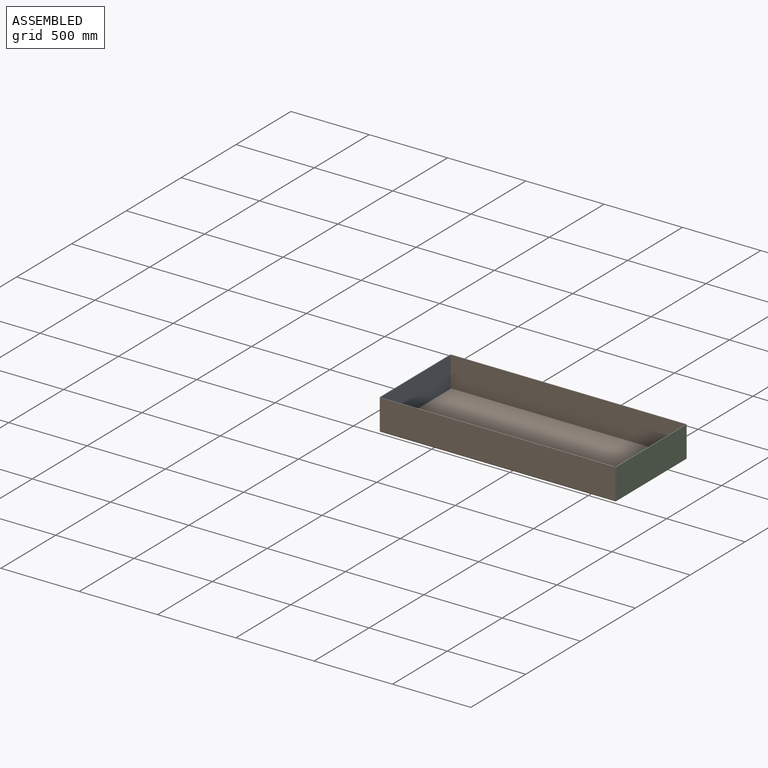
[diagram: assembled view]
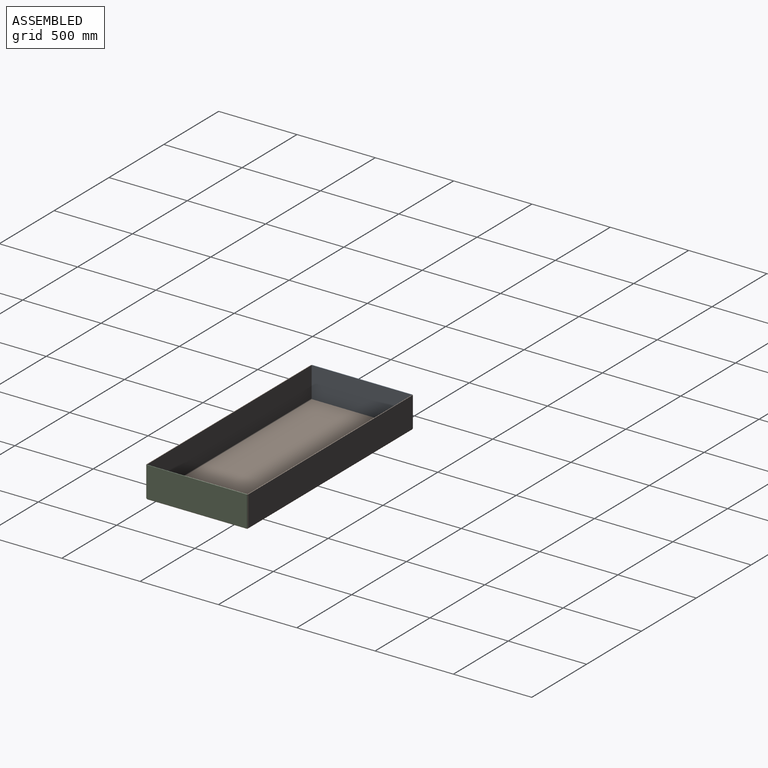
[diagram: assembled view, second angle]
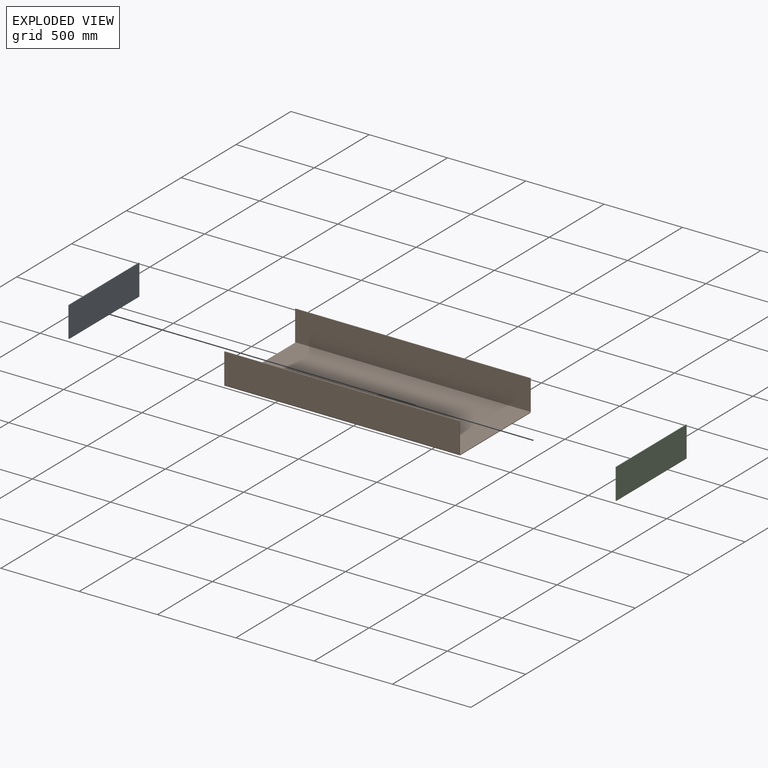
[diagram: exploded view]
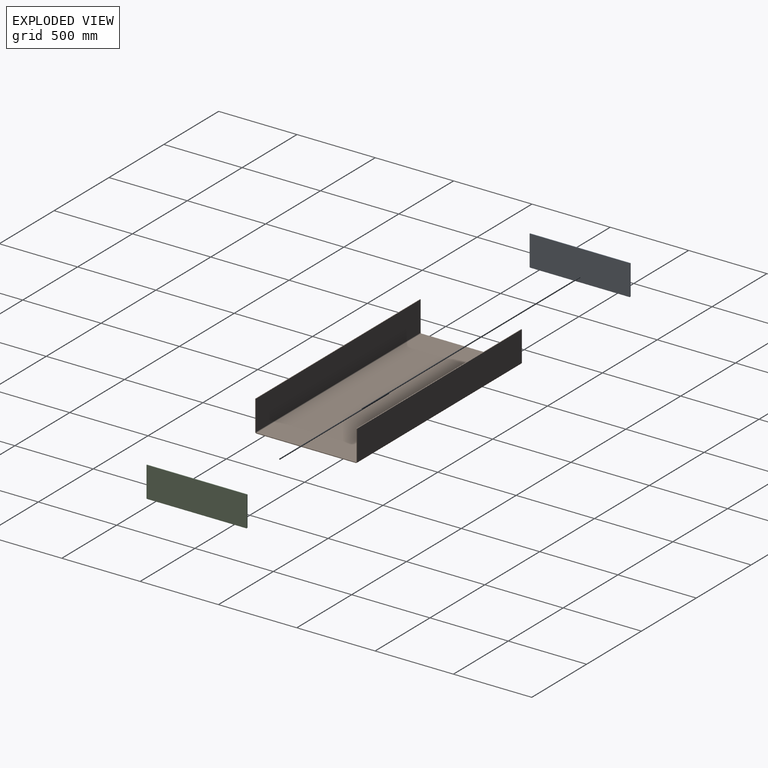
[diagram: exploded view, second angle]
ASSEMBLY  parts=3 mates=2
PART A: 8 faces, bbox 4x642x196 mm
  f0: plane 192x4mm, normal (0,1,0), area 768mm2, adj f1,f4,f5,f7
  f1: plane 642x4mm, normal (0,0,1), area 2568mm2, adj f0,f2,f4,f5
  f2: plane 192x4mm, normal (0,-1,0), area 768mm2, adj f1,f4,f5,f6
  f3: plane 634x4mm, normal (0,0,-1), area 2536mm2, adj f4,f5,f6,f7
  f4: plane 642x196mm, normal (1,0,0), area 125825.1mm2, adj f0,f1,f2,f3,f6,f7
  f5: plane 642x196mm, normal (-1,0,0), area 125825.1mm2, adj f0,f1,f2,f3,f6,f7
  f6: cylinder r=4mm len=4mm, axis (1,0,0), area 25.1mm2, adj f2,f3,f4,f5
  f7: cylinder r=4mm len=4mm, axis (-1,0,0), area 25.1mm2, adj f0,f3,f4,f5
PART B: 22 faces, bbox 1502x650x200 mm
  f0: plane 634x4mm, normal (1,0,0), area 2536mm2, adj f2,f3,f9,f19
  f1: plane 634x4mm, normal (-1,0,0), area 2536mm2, adj f2,f3,f10,f18
  f2: plane 1502x634mm, normal (0,0,-1), area 952268mm2, adj f0,f1,f11,f20
  f3: plane 1502x634mm, normal (0,0,1), area 952268mm2, adj f0,f1,f12,f21
  f4: plane 1502x4mm, normal (0,0,1), area 6008mm2, adj f5,f6,f7,f8
  f5: plane 192x4mm, normal (-1,0,0), area 768mm2, adj f4,f7,f8,f10
  f6: plane 192x4mm, normal (1,0,0), area 768mm2, adj f4,f7,f8,f9
  f7: plane 1502x192mm, normal (0,-1,0), area 288384mm2, adj f4,f5,f6,f11
  f8: plane 1502x192mm, normal (0,1,0), area 288384mm2, adj f4,f5,f6,f12
  f9: plane 8x8mm, normal (1,0,0), area 37.7mm2, adj f0,f6,f11,f12
  f10: plane 8x8mm, normal (-1,0,0), area 37.7mm2, adj f1,f5,f11,f12
  f11: cylinder r=8mm len=1502mm, axis (1,0,0), area 18874.7mm2, adj f2,f7,f9,f10
  f12: cylinder r=4mm len=1502mm, axis (1,0,0), area 9437.3mm2, adj f3,f8,f9,f10
  f13: plane 1502x4mm, normal (0,0,1), area 6008mm2, adj f14,f15,f16,f17
  f14: plane 192x4mm, normal (1,0,0), area 768mm2, adj f13,f16,f17,f19
  f15: plane 192x4mm, normal (-1,0,0), area 768mm2, adj f13,f16,f17,f18
  f16: plane 1502x192mm, normal (0,1,0), area 288384mm2, adj f13,f14,f15,f20
  f17: plane 1502x192mm, normal (0,-1,0), area 288384mm2, adj f13,f14,f15,f21
  f18: plane 8x8mm, normal (-1,0,0), area 37.7mm2, adj f1,f15,f20,f21
  f19: plane 8x8mm, normal (1,0,0), area 37.7mm2, adj f0,f14,f20,f21
  f20: cylinder r=8mm len=1502mm, axis (-1,0,0), area 18874.7mm2, adj f2,f16,f18,f19
  f21: cylinder r=4mm len=1502mm, axis (-1,0,0), area 9437.3mm2, adj f3,f17,f18,f19
PART C: same geometry as A
PLACE A t=(-1315.63,3038.77,-664.32)mm
PLACE B t=(-560.63,2112.96,-668.32)mm
PLACE C t=(190.37,3038.77,-664.32)mm
MATE fastened A.f4 <-> B.f5  axis (1,0,0) through (-1311.63,-1023.56,-468.32)mm
MATE fastened C.f5 <-> B.f6  axis (-1,0,0) through (190.37,-1023.56,-468.32)mm
